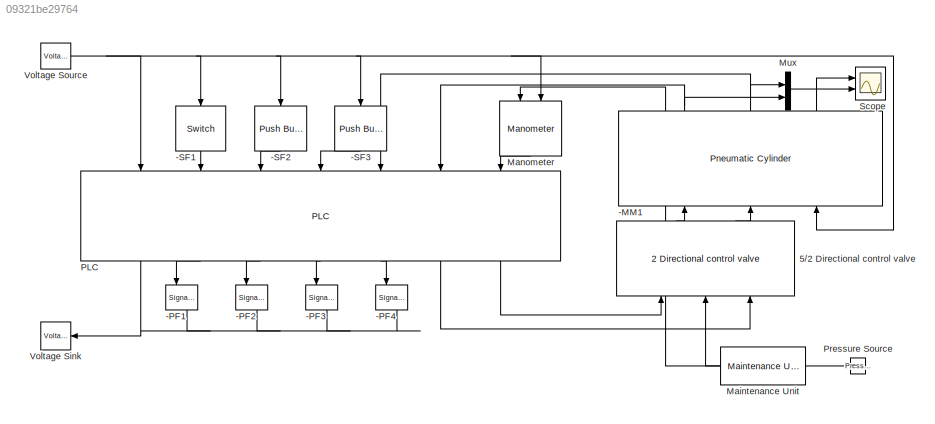
MODEL slx_09321be29764
KIND model
CONFIG AbsTol = auto
CONFIG EnableMultiTasking = off
CONFIG FixedStep = auto
CONFIG MaxStep = auto
CONFIG MinStep = auto
CONFIG RelTol = 1e-3
CONFIG SampleTimeConstraint = Unconstrained
CONFIG Solver = VariableStepAuto
CONFIG SolverName = VariableStepAuto
CONFIG StartTime = 0.0
CONFIG StopTime = inf
BLOCK [Reference] -MM1  REF=library_plc2simulink/Pneumatic Cylinder  (lib defined in slx_51909f2a5fe6, slx_fcf39afcd9e3)
  Ports = [3, 3]
  SourceBlock = library_plc2simulink/Pneumatic Cylinder
  SourceProductName = PLC2Simulink
BLOCK [Reference] -PF1  REF=library_plc2simulink/Signal Lamp  (lib defined in slx_51909f2a5fe6, slx_fcf39afcd9e3)
  Ports = [2]
  SourceBlock = library_plc2simulink/Signal Lamp
  SourceProductName = PLC2Simulink
BLOCK [Reference] -PF2  REF=library_plc2simulink/Signal Lamp  (lib defined in slx_51909f2a5fe6, slx_fcf39afcd9e3)
  Ports = [2]
  SourceBlock = library_plc2simulink/Signal Lamp
  SourceProductName = PLC2Simulink
BLOCK [Reference] -PF3  REF=library_plc2simulink/Signal Lamp  (lib defined in slx_51909f2a5fe6, slx_fcf39afcd9e3)
  Ports = [2]
  SourceBlock = library_plc2simulink/Signal Lamp
  SourceProductName = PLC2Simulink
BLOCK [Reference] -PF4  REF=library_plc2simulink/Signal Lamp  (lib defined in slx_51909f2a5fe6, slx_fcf39afcd9e3)
  Ports = [2]
  SourceBlock = library_plc2simulink/Signal Lamp
  SourceProductName = PLC2Simulink
BLOCK [Reference] -SF1  REF=library_plc2simulink/Switch  (lib defined in slx_51909f2a5fe6, slx_fcf39afcd9e3)
  Ports = [1, 1]
  SourceBlock = library_plc2simulink/Switch
  SourceProductName = PLC2Simulink
BLOCK [Reference] -SF2  REF=library_plc2simulink/Push Button  (lib defined in slx_51909f2a5fe6, slx_fcf39afcd9e3)
  Ports = [1, 1]
  SourceBlock = library_plc2simulink/Push Button
  SourceProductName = PLC2Simulink
BLOCK [Reference] -SF3  REF=library_plc2simulink/Push Button  (lib defined in slx_51909f2a5fe6, slx_fcf39afcd9e3)
  Ports = [1, 1]
  SourceBlock = library_plc2simulink/Push Button
  SourceProductName = PLC2Simulink
BLOCK [Reference] 5//2 Directional control valve  REF=library_plc2simulink/5//2 Directional control valve  (lib defined in slx_51909f2a5fe6, slx_fcf39afcd9e3)
  Ports = [3, 2]
  SourceBlock = library_plc2simulink/5//2 Directional control valve
  SourceProductName = PLC2Simulink
BLOCK [Reference] Maintenance Unit  REF=library_plc2simulink/Maintenance Unit  (lib defined in slx_51909f2a5fe6, slx_fcf39afcd9e3)
  Ports = [1, 1]
  SourceBlock = library_plc2simulink/Maintenance Unit
  SourceProductName = PLC2Simulink
BLOCK [Reference] Manometer   REF=library_plc2simulink/Manometer   (lib defined in slx_51909f2a5fe6, slx_fcf39afcd9e3)
  Ports = [2, 1]
  SourceBlock = library_plc2simulink/Manometer
  SourceProductName = PLC2Simulink
BLOCK [Mux] Mux
  DisplayOption = bar
  Inputs = 2
  Ports = [2, 1]
BLOCK [Reference] PLC  REF=library_plc2simulink/PLC  (lib defined in slx_51909f2a5fe6, slx_fcf39afcd9e3)
  Ports = [7, 7]
  SourceBlock = library_plc2simulink/PLC
  SourceProductName = PLC2Simulink
BLOCK [Reference] Pressure Source  REF=library_plc2simulink/Pressure Source  (lib defined in slx_51909f2a5fe6, slx_fcf39afcd9e3)
  Ports = [0, 1]
  SourceBlock = library_plc2simulink/Pressure Source
  SourceProductName = PLC2Simulink
BLOCK [Scope] Scope
  Floating = off
  NumInputPorts = 2
  Ports = [2]
  ScopeSpecificationString = Simulink.scopes.TimeScopeBlockCfg('CurrentConfiguration', extmgr.ConfigurationSet(extmgr.Configuration('Core','General UI',true,'FigureColor',[1 1 1],'ShowMainToolbar',false,'ShowStatusbar',false),extmgr.Configuration('Core','Source UI',true),extmgr.Configuration('Sources','WiredSimulink',true,'SampleTime','0.1'),extmgr.Configuration('Visuals','Time Domain',true,'PlotType','Line','SerializedDispla...<+2270ch>
BLOCK [Reference] Voltage Sink  REF=library_plc2simulink/Voltage Sink  (lib defined in slx_51909f2a5fe6, slx_fcf39afcd9e3)
  Ports = [1]
  SourceBlock = library_plc2simulink/Voltage Sink
  SourceProductName = PLC2Simulink
BLOCK [Reference] Voltage Source  REF=library_plc2simulink/Voltage Source  (lib defined in slx_51909f2a5fe6, slx_fcf39afcd9e3)
  Ports = [0, 1]
  SourceBlock = library_plc2simulink/Voltage Source
  SourceProductName = PLC2Simulink
NET -MM1:1 -> Mux:2, PLC:6
NET -MM1:2 -> Mux:1, PLC:5
LINE -MM1:3 -> Scope:1
LINE -SF1:1 -> PLC:2
LINE -SF2:1 -> PLC:3
LINE -SF3:1 -> PLC:4
LINE 5//2 Directional control valve:1 -> -MM1:1
LINE 5//2 Directional control valve:2 -> -MM1:2
NET Maintenance Unit:1 -> 5//2 Directional control valve:2, Manometer :1
LINE Manometer :1 -> PLC:7
LINE Mux:1 -> Scope:2
NET PLC:1 -> -PF1:2, -PF2:2, -PF3:2, -PF4:2, Voltage Sink:1
LINE PLC:2 -> -PF1:1
LINE PLC:3 -> -PF2:1
LINE PLC:4 -> -PF3:1
LINE PLC:5 -> -PF4:1
LINE PLC:6 -> 5//2 Directional control valve:3
LINE PLC:7 -> 5//2 Directional control valve:1
LINE Pressure Source:1 -> Maintenance Unit:1
NET Voltage Source:1 -> -MM1:3, -SF1:1, -SF2:1, -SF3:1, Manometer :2, PLC:1
note: NET lines group one-source signal fan-out (src -> all destinations, sorted); 1:1 wires keep LINE
